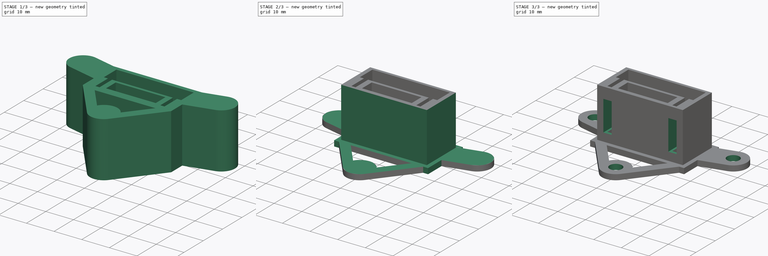
[diagram: build sequence overview — one tinted view per stage of 3, left to right]
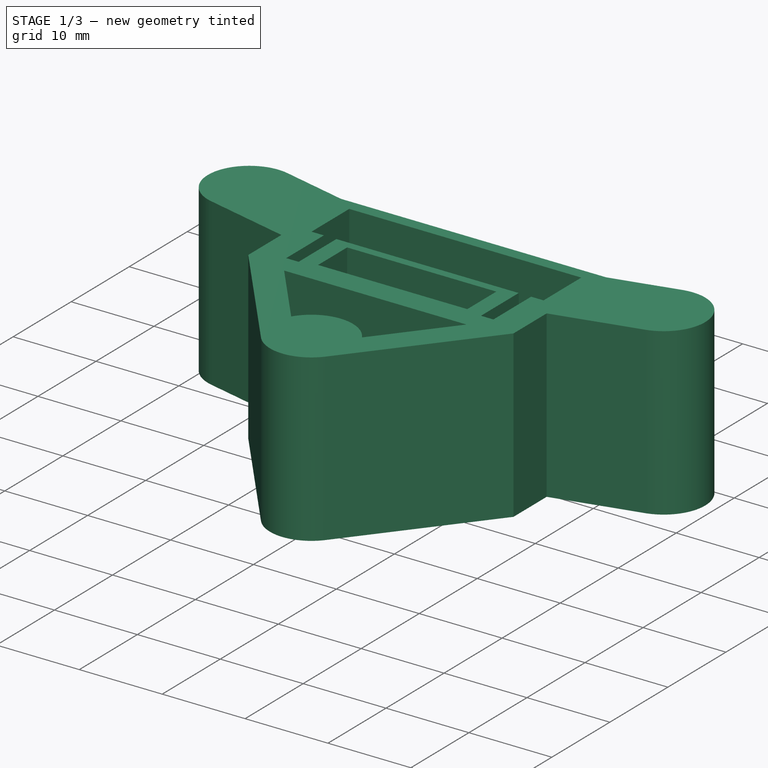
[diagram: stage 1 of 3 — iso view after this stage's code; geometry added in this stage tinted green]
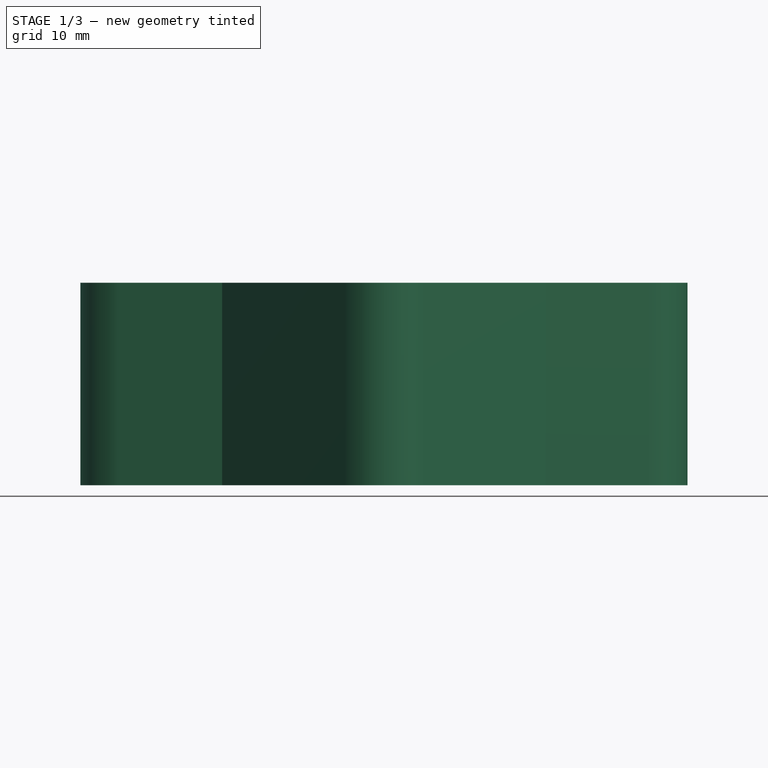
[diagram: stage 1 of 3 — front view after this stage's code; geometry added in this stage tinted green]
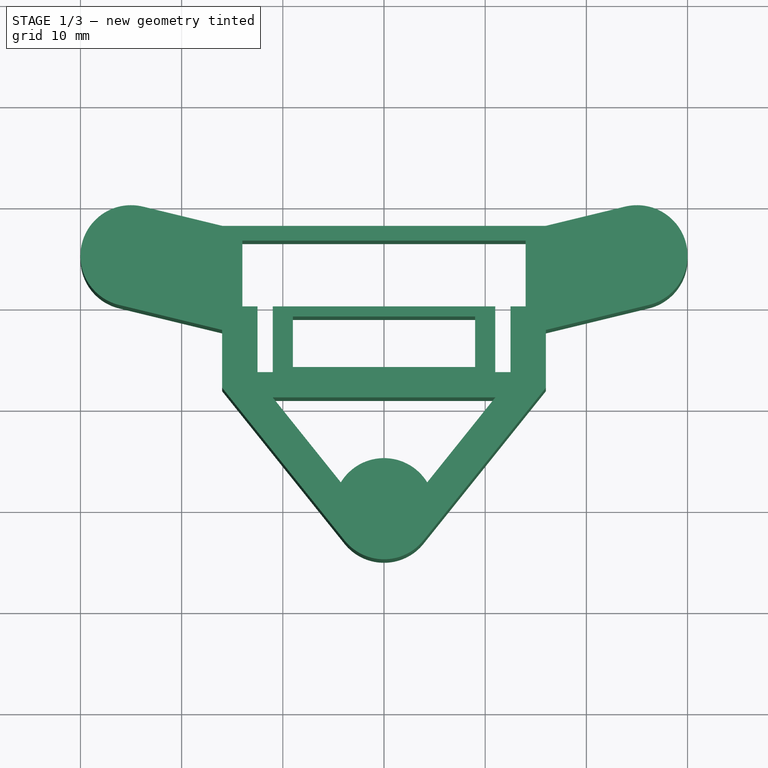
[diagram: stage 1 of 3 — top view after this stage's code; geometry added in this stage tinted green]
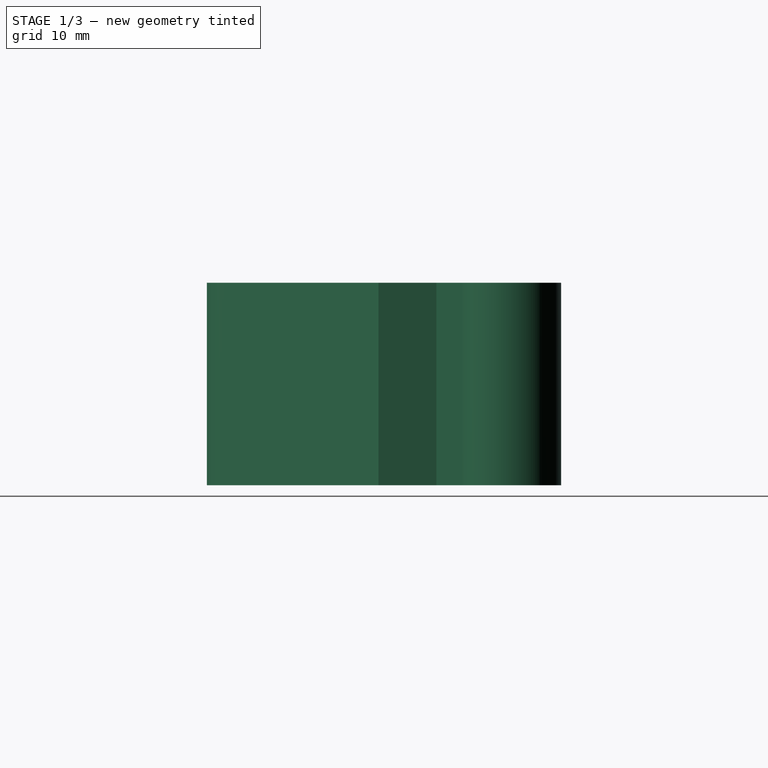
[diagram: stage 1 of 3 — right view after this stage's code; geometry added in this stage tinted green]
FCSTD DOCUMENT  (FreeCAD 1.0R38641 +678 (Git))
Label: box-part1
License: All rights reserved
LicenseURL: https://en.wikipedia.org/wiki/All_rights_reserved
objects: Sketcher::SketchObject×6, PartDesign::Pocket×4, PartDesign::Pad×2, PartDesign::Body×1
note: 31 computed .brp shape members not serialized (recipe doc carries the construction recipe); baked Part::Feature solids carry a one-line shape summary decoded from their .brp

FEATURE [Sketcher::SketchObject] Sketch276
  ArcFitTolerance = 0
  AttachmentSupport = -> [XY_Plane031]
  FullyConstrained = true
  MakeInternals = false
  MapMode = 5
  sketch-geometry (30):
    g0: LineSegment StartX=-14 StartY=6.5 StartZ=0 EndX=-14 EndY=0 EndZ=0
    g1: LineSegment StartX=-14 StartY=6.5 StartZ=0 EndX=14 EndY=6.5 EndZ=0
    g2: LineSegment StartX=14 StartY=6.5 StartZ=0 EndX=14 EndY=0 EndZ=0
    g3: LineSegment StartX=-12.5 StartY=-6.5 StartZ=0 EndX=-11 EndY=-6.5 EndZ=0
    g4: LineSegment StartX=-11 StartY=0 StartZ=0 EndX=11 EndY=1.7e-15 EndZ=0
    g5: LineSegment StartX=-12.5 StartY=0 StartZ=0 EndX=-12.5 EndY=-6.5 EndZ=0
    g6: LineSegment StartX=-11 StartY=0 StartZ=0 EndX=-11 EndY=-6.5 EndZ=0
    g7: LineSegment StartX=12.5 StartY=0 StartZ=0 EndX=12.5 EndY=-6.5 EndZ=0
    g8: LineSegment StartX=11 StartY=1.7e-15 StartZ=0 EndX=11 EndY=-6.5 EndZ=0
    g9: LineSegment StartX=-16 StartY=7.96043 StartZ=0 EndX=16 EndY=7.96043 EndZ=0
    g10: LineSegment StartX=16 StartY=-2.33 StartZ=0 EndX=16 EndY=-8.03957 EndZ=0
    g11: LineSegment StartX=-16 StartY=-8.03957 StartZ=0 EndX=-16 EndY=-2.33 EndZ=0
    g12: LineSegment StartX=-14 StartY=0 StartZ=0 EndX=-12.5 EndY=0 EndZ=0
    g13: LineSegment StartX=14 StartY=0 StartZ=0 EndX=12.5 EndY=0 EndZ=0
    g14: LineSegment StartX=11 StartY=-6.5 StartZ=0 EndX=12.5 EndY=-6.5 EndZ=0
    g15: ArcOfCircle CenterX=-25 CenterY=5 CenterZ=0 NormalX=0 NormalY=0 NormalZ=1 AngleXU=0 Radius=5 StartAngle=1.33265 EndAngle=4.47424
    g16: ArcOfCircle CenterX=25 CenterY=5 CenterZ=0 NormalX=0 NormalY=0 NormalZ=1 AngleXU=0 Radius=5 StartAngle=4.95054 EndAngle=8.09213
    g17: ArcOfCircle CenterX=0 CenterY=-20 CenterZ=0 NormalX=0 NormalY=0 NormalZ=1 AngleXU=0 Radius=5 StartAngle=0.547966 EndAngle=2.59363
    g18: LineSegment StartX=-16 StartY=7.96043 StartZ=0 EndX=-23.8205 EndY=9.85888 EndZ=0
    g19: LineSegment StartX=-16 StartY=-2.33 StartZ=0 EndX=-26.1795 EndY=0.141116 EndZ=0
    g20: LineSegment StartX=16 StartY=7.96043 StartZ=0 EndX=23.8205 EndY=9.85888 EndZ=0
    g21: LineSegment StartX=16 StartY=-2.33 StartZ=0 EndX=26.1795 EndY=0.141116 EndZ=0
    g22: LineSegment StartX=-16 StartY=-8.03957 StartZ=0 EndX=-3.90074 EndY=-23.128 EndZ=0
    g23: LineSegment StartX=16 StartY=-8.03957 StartZ=0 EndX=3.90074 EndY=-23.128 EndZ=0
    g24: LineSegment StartX=-11 StartY=-9 StartZ=0 EndX=11 EndY=-9 EndZ=0
    g25: LineSegment StartX=-11 StartY=-9 StartZ=0 EndX=-4.26793 EndY=-17.3952 EndZ=0
    g26: LineSegment StartX=11 StartY=-9 StartZ=0 EndX=4.26793 EndY=-17.3952 EndZ=0
    g27: ArcOfCircle CenterX=0 CenterY=-20 CenterZ=0 NormalX=0 NormalY=0 NormalZ=1 AngleXU=0 Radius=5 StartAngle=3.81749 EndAngle=5.60729
    g28: LineSegment [constr] StartX=-16 StartY=-8.03957 StartZ=0 EndX=16 EndY=-8.03957 EndZ=0
    g29: LineSegment [constr] StartX=-25 StartY=5 StartZ=0 EndX=25 EndY=5 EndZ=0
  constraints (87):
    c: Vertical(g0)
    c: Coincident(g1,g0)
    c: Horizontal(g1)
    c: DistanceX(g1,g1) = 28
    c: Coincident(g2,g1)
    c: Vertical(g2)
    c: Horizontal(g3)
    c: Distance(g0,g4) = 6.5
    c: Distance(g-1,g0) = 14
    c: Distance(g-1,g1) = 6.5
    c: Vertical(g5)
    c: Vertical(g6)
    c: PointOnObject(g7,g3)
    c: Vertical(g7)
    c: Vertical(g8)
    c: Coincident(g4,g8)
    c: Horizontal(g9)
    c: Vertical(g10)
    c: Vertical(g11)
    c: DistanceY(g10,g9) = 16
    c: DistanceX(g11,g10) = 32
    c: Distance(g-1,g10) = 16
    c: PointOnObject(g12,g-1)
    c: Horizontal(g12)
    c: Coincident(g5,g12)
    c: Coincident(g6,g4)
    c: Horizontal(g13)
    c: Coincident(g7,g13)
    c: Coincident(g0,g12)
    c: Coincident(g3,g6)
    c: Coincident(g14,g8)
    c: Coincident(g3,g5)
    c: Coincident(g2,g13)
    c: PointOnObject(g14,g7)
    c: DistanceY(g2,g2) = 6.5
    c: DistanceX(g13,g13) = 1.5
    c: DistanceX(g4,g4) = 22
    c: DistanceX(g12,g12) = 1.5
    c: PointOnObject(g4,g-1)
    c: DistanceY(g6,g6) = 6.5
    c: DistanceY(g8,g8) = 6.5
    c: Distance(g-1,g8) = 11
    c: Horizontal(g14)
    c: PointOnObject(g17,g-2)
    c: Diameter(g17) = 10
    c: Equal(g15,g16)
    c: Equal(g16,g17)
    c: Distance(g15,g16) = 50
    c: DistanceY(g-1,g15) = 5
    c: DistanceY(g-1,g16) = 5
    c: DistanceX(g-2,g15) = -25
    c: Coincident(g18,g9)
    c: Parallel(g18,g19)
    c: Tangent(g15,g19) = 1.5708
    c: Tangent(g15,g18) = -1.5708
    c: Coincident(g20,g9)
    c: Parallel(g20,g21)
    c: Tangent(g16,g20) = 1.5708
    c: Tangent(g16,g21) = -1.5708
    c: Coincident(g10,g21)
    c: Coincident(g11,g19)
    c: DistanceX(g9,g9) = 32
    c: DistanceX(g-2,g9) = 16
    c: Coincident(g23,g10)
    c: Coincident(g22,g11)
    c: DistanceY(g-1,g11) = -2.33
    c: Horizontal(g24)
    c: Coincident(g25,g24)
    c: Distance(g-1,g24) = 9
    c: Parallel(g25,g22)
    c: DistanceX(g-2,g24) = -11
    c: DistanceX(g24,g24) = 22
    c: Coincident(g26,g24)
    c: Parallel(g26,g23)
    c: Coincident(g27,g23) = 1.5708
    c: Coincident(g17,g26)
    c: Equal(g17,g27)
    c: Coincident(g17,g25)
    c: Tangent(g27,g22) = -1.5708
    c: Coincident(g17,g27)
    c: Tangent(g23,g27) = 1.5708
    c: Coincident(g28,g11)
    c: Horizontal(g28)
    c: Coincident(g28,g10)
    c: Coincident(g29,g15)
    c: Coincident(g29,g16)
    c: Distance(g17,g29) = 25
FEATURE [PartDesign::Pad] Pad132
  Direction = (0,0,1)
  Length = 20
  Length2 = 10
  Profile = -> Sketch276
  ReferenceAxis = -> Sketch276 [N_Axis]
  Suppressed = false
  Type = 0
FEATURE [Sketcher::SketchObject] Sketch277
  ArcFitTolerance = 0
  AttachmentSupport = -> [Pad132]
  FullyConstrained = true
  MakeInternals = false
  MapMode = 5
  Placement = pos=(0,0,0) rot=(1,0,0;3.14159rad)
  sketch-geometry (4):
    g0: LineSegment StartX=-9 StartY=6 StartZ=0 EndX=9 EndY=6 EndZ=0
    g1: LineSegment StartX=9 StartY=6 StartZ=0 EndX=9 EndY=1 EndZ=0
    g2: LineSegment StartX=9 StartY=1 StartZ=0 EndX=-9 EndY=1 EndZ=0
    g3: LineSegment StartX=-9 StartY=1 StartZ=0 EndX=-9 EndY=6 EndZ=0
  constraints (12):
    c: Coincident(g0,g1)
    c: Coincident(g1,g2)
    c: Coincident(g2,g3)
    c: Coincident(g3,g0)
    c: Horizontal(g0)
    c: Horizontal(g2)
    c: Vertical(g1)
    c: Vertical(g3)
    c: Distance(g-1,g2) = 1
    c: DistanceY(g1,g1) = 5
    c: DistanceX(g0,g0) = 18
    c: Distance(g-1,g1) = 9
FEATURE [PartDesign::Pocket] Pocket115
  BaseFeature = -> Pad132
  Direction = (0,0,1)
  Length = 20
  Length2 = 5
  Profile = -> Sketch277
  ReferenceAxis = -> Sketch277 [N_Axis]
  Suppressed = false
  Type = 0
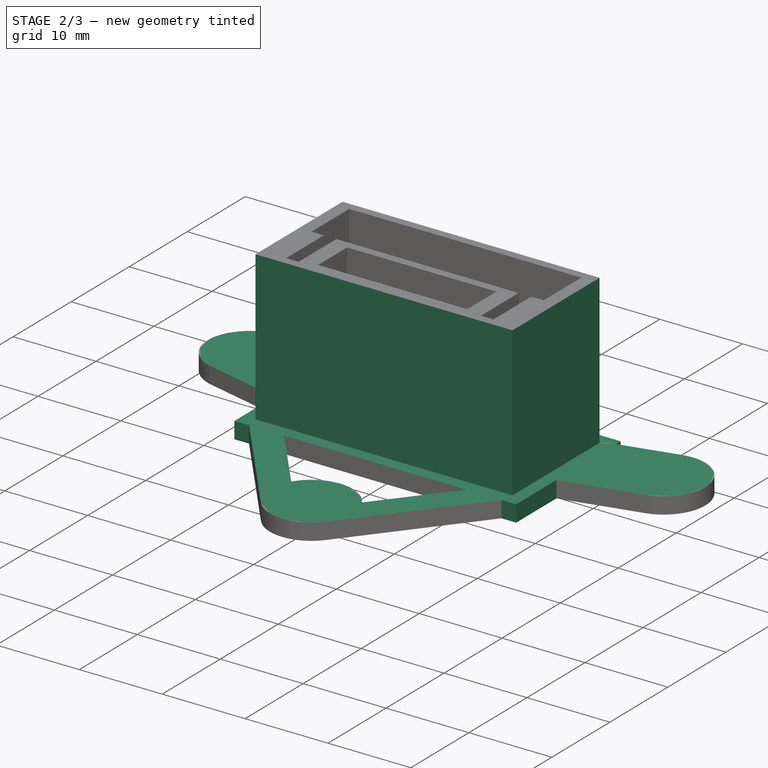
[diagram: stage 2 of 3 — iso view after this stage's code; geometry added in this stage tinted green]
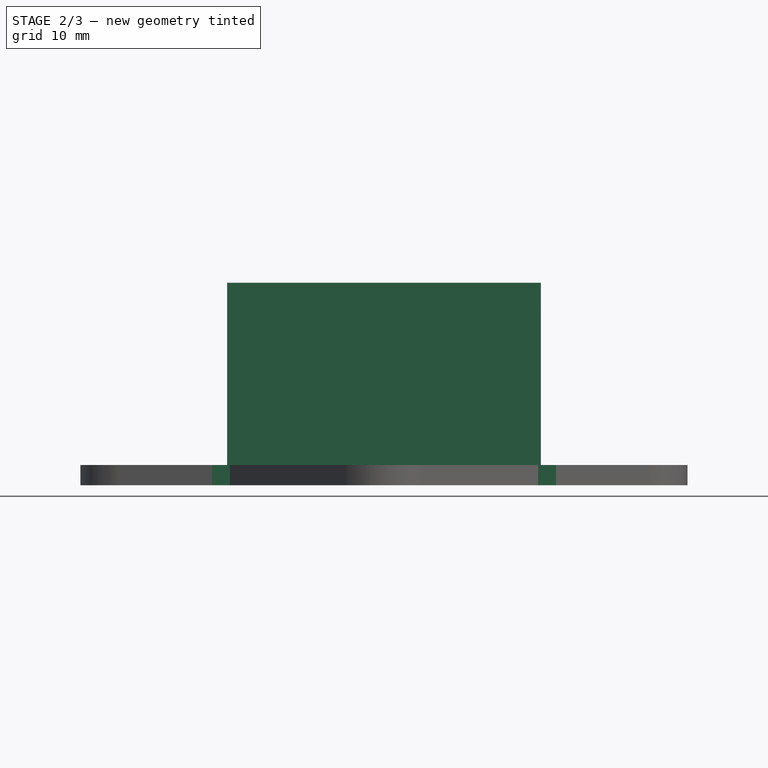
[diagram: stage 2 of 3 — front view after this stage's code; geometry added in this stage tinted green]
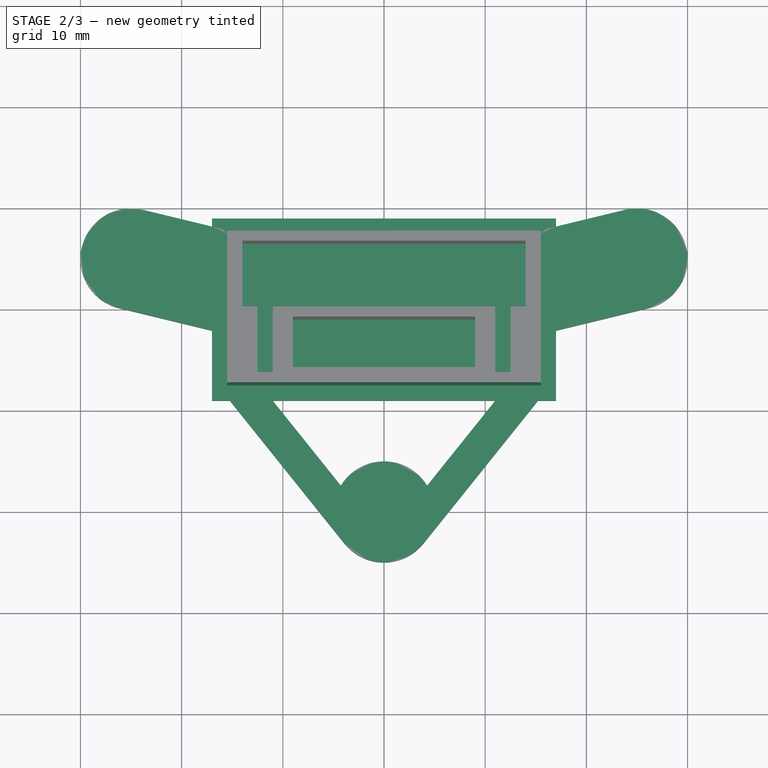
[diagram: stage 2 of 3 — top view after this stage's code; geometry added in this stage tinted green]
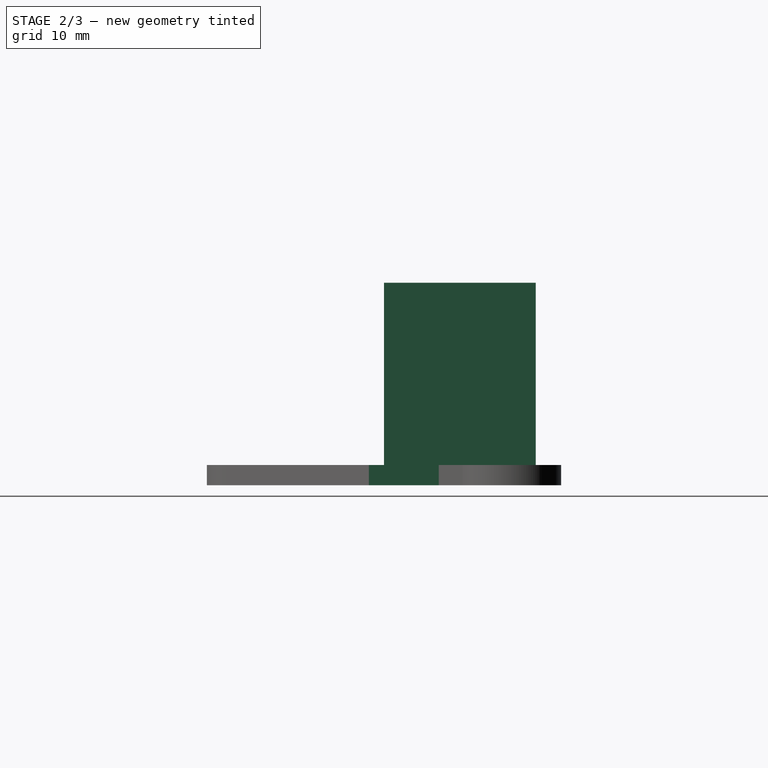
[diagram: stage 2 of 3 — right view after this stage's code; geometry added in this stage tinted green]
FEATURE [Sketcher::SketchObject] Sketch278
  ArcFitTolerance = 0
  AttachmentSupport = -> [Pocket115]
  FullyConstrained = true
  MakeInternals = false
  MapMode = 5
  Placement = pos=(0,0,0) rot=(1,0,0;3.14159rad)
  sketch-geometry (4):
    g0: LineSegment StartX=-17 StartY=9 StartZ=0 EndX=17 EndY=9 EndZ=0
    g1: LineSegment StartX=17 StartY=9 StartZ=0 EndX=17 EndY=-9 EndZ=0
    g2: LineSegment StartX=17 StartY=-9 StartZ=0 EndX=-17 EndY=-9 EndZ=0
    g3: LineSegment StartX=-17 StartY=-9 StartZ=0 EndX=-17 EndY=9 EndZ=0
  constraints (12):
    c: Coincident(g0,g1)
    c: Coincident(g1,g2)
    c: Coincident(g2,g3)
    c: Coincident(g3,g0)
    c: Horizontal(g0)
    c: Horizontal(g2)
    c: Vertical(g1)
    c: Vertical(g3)
    c: DistanceX(g2,g2) = 34
    c: DistanceY(g3,g3) = 18
    c: Distance(g-1,g0) = 9
    c: Distance(g-1,g3) = 17
FEATURE [PartDesign::Pad] Pad133
  BaseFeature = -> Pocket115
  Direction = (0,0,-1)
  Length = 2
  Length2 = 10
  Profile = -> Sketch278
  ReferenceAxis = -> Sketch278 [N_Axis]
  Reversed = true
  Suppressed = false
  Type = 0
FEATURE [Sketcher::SketchObject] Sketch279
  ArcFitTolerance = 0
  AttachmentSupport = -> [Pad133]
  FullyConstrained = true
  MakeInternals = false
  MapMode = 5
  Placement = pos=(0,0,20) rot=(0,0,1;0rad)
  sketch-geometry (8):
    g0: LineSegment StartX=15.5 StartY=-7.5 StartZ=0 EndX=-15.5 EndY=-7.5 EndZ=0
    g1: LineSegment StartX=-30.5 StartY=-29.5 StartZ=0 EndX=30.5 EndY=-29.5 EndZ=0
    g2: LineSegment StartX=-30.5 StartY=-29.5 StartZ=0 EndX=-30.5 EndY=20 EndZ=0
    g3: LineSegment StartX=-15.5 StartY=7.5 StartZ=0 EndX=-15.5 EndY=-7.5 EndZ=0
    g4: LineSegment StartX=30.5 StartY=-29.5 StartZ=0 EndX=30.5 EndY=20 EndZ=0
    g5: LineSegment StartX=15.5 StartY=7.5 StartZ=0 EndX=15.5 EndY=-7.5 EndZ=0
    g6: LineSegment StartX=-15.5 StartY=7.5 StartZ=0 EndX=15.5 EndY=7.5 EndZ=0
    g7: LineSegment StartX=30.5 StartY=20 StartZ=0 EndX=-30.5 EndY=20 EndZ=0
  constraints (24):
    c: Horizontal(g0)
    c: Horizontal(g1)
    c: Vertical(g2)
    c: Vertical(g3)
    c: Vertical(g4)
    c: Vertical(g5)
    c: DistanceX(g2,g3) = 15
    c: DistanceX(g5,g4) = 15
    c: Distance(g-1,g3) = 15.5
    c: Distance(g-1,g5) = 15.5
    c: DistanceY(g1,g0) = 22
    c: Distance(g-1,g1) = 29.5
    c: Horizontal(g6)
    c: Horizontal(g7)
    c: Distance(g-1,g6) = 7.5
    c: Coincident(g0,g3)
    c: Coincident(g0,g5)
    c: Coincident(g3,g6)
    c: Coincident(g6,g5)
    c: Coincident(g1,g4)
    c: Coincident(g1,g2)
    c: Coincident(g2,g7)
    c: Coincident(g7,g4)
    c: DistanceY(g4,g4) = 49.5
FEATURE [PartDesign::Pocket] Pocket116
  BaseFeature = -> Pad133
  Direction = (0,0,-1)
  Length = 36
  Length2 = 5
  Midplane = true
  Profile = -> Sketch279
  ReferenceAxis = -> Sketch279 [N_Axis]
  Suppressed = false
  Type = 0
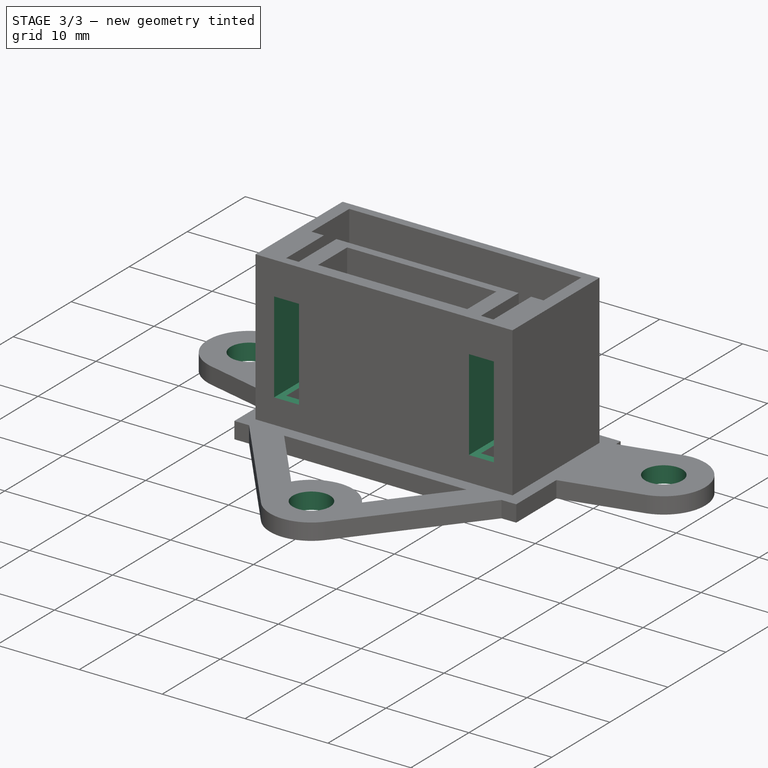
[diagram: stage 3 of 3 — iso view after this stage's code; geometry added in this stage tinted green]
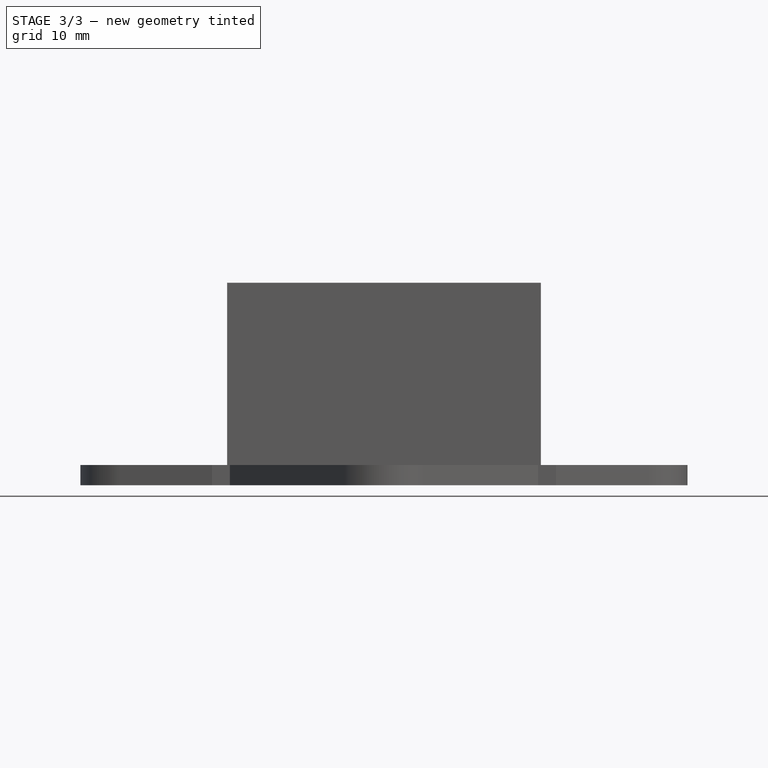
[diagram: stage 3 of 3 — front view after this stage's code; geometry added in this stage tinted green]
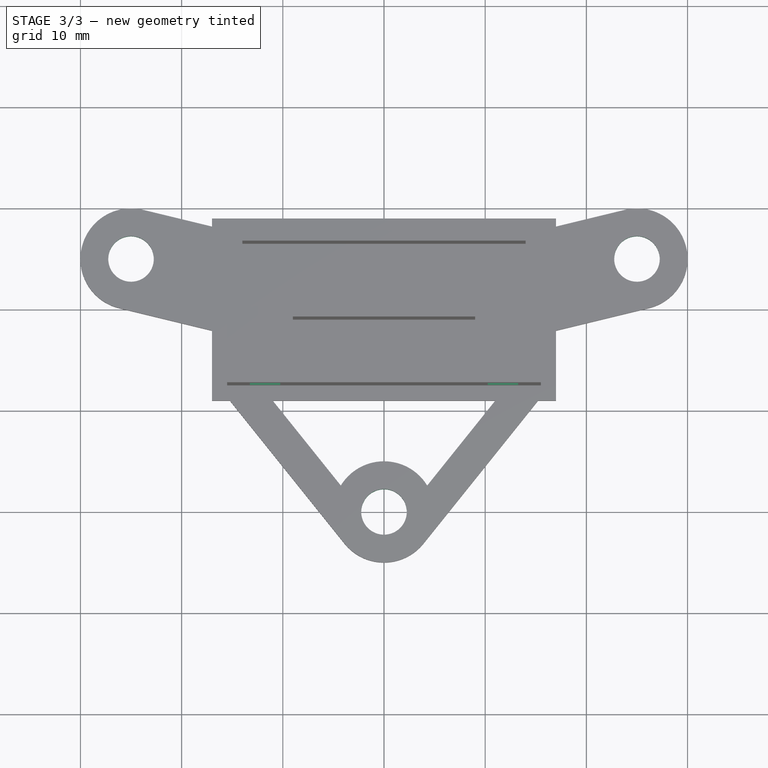
[diagram: stage 3 of 3 — top view after this stage's code; geometry added in this stage tinted green]
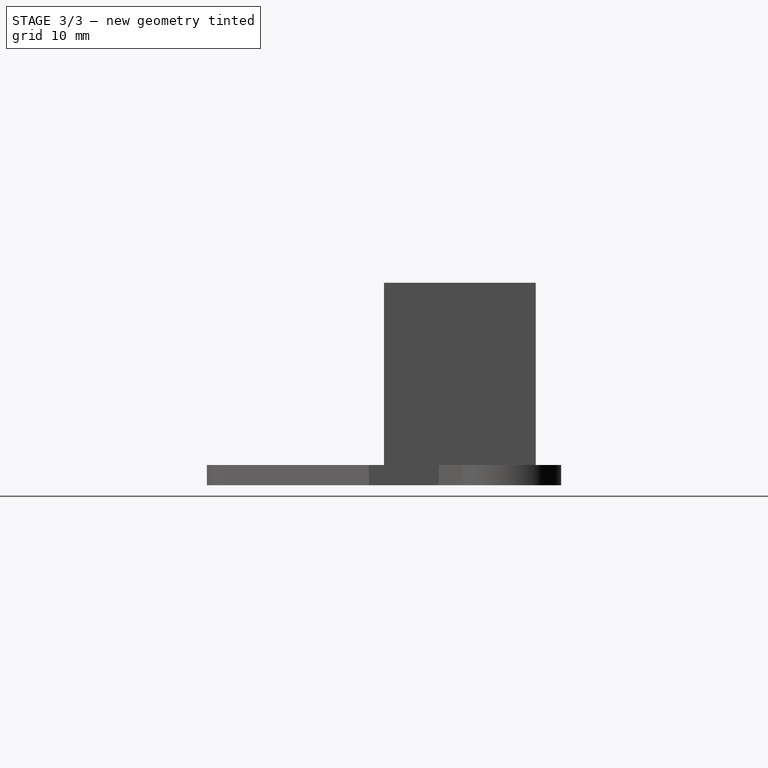
[diagram: stage 3 of 3 — right view after this stage's code; geometry added in this stage tinted green]
FEATURE [Sketcher::SketchObject] Sketch280
  ArcFitTolerance = 0
  AttachmentSupport = -> [XY_Plane031]
  FullyConstrained = true
  MakeInternals = false
  MapMode = 5
  sketch-geometry (3):
    g0: Circle CenterX=0 CenterY=-20 CenterZ=0 NormalX=0 NormalY=0 NormalZ=1 AngleXU=0 Radius=2.25
    g1: Circle CenterX=25 CenterY=5 CenterZ=0 NormalX=0 NormalY=0 NormalZ=1 AngleXU=0 Radius=2.25
    g2: Circle CenterX=-25 CenterY=5 CenterZ=0 NormalX=0 NormalY=0 NormalZ=1 AngleXU=0 Radius=2.25
  constraints (9):
    c: Distance(g2,g-2) = 25
    c: Distance(g1,g-2) = 25
    c: Distance(g2,g-1) = 5
    c: Distance(g1,g-1) = 5
    c: Distance(g0,g-1) = 20
    c: PointOnObject(g0,g-2)
    c: Diameter(g2) = 4.5
    c: Equal(g2,g1)
    c: Equal(g2,g0)
FEATURE [PartDesign::Pocket] Pocket117
  BaseFeature = -> Pocket116
  Direction = (0,0,-1)
  Length = 5
  Length2 = 5
  Profile = -> Sketch280
  ReferenceAxis = -> Sketch280 [N_Axis]
  Reversed = true
  Suppressed = false
  Type = 0
FEATURE [Sketcher::SketchObject] Sketch281
  ArcFitTolerance = 0
  AttachmentSupport = -> [Pocket117]
  FullyConstrained = true
  MakeInternals = false
  MapMode = 5
  Placement = pos=(0,-7.5,0) rot=(1,0,0;1.5708rad)
  sketch-geometry (8):
    g0: LineSegment StartX=-13.25 StartY=5 StartZ=0 EndX=-10.25 EndY=5 EndZ=0
    g1: LineSegment StartX=-13.25 StartY=5 StartZ=0 EndX=-13.25 EndY=16 EndZ=0
    g2: LineSegment StartX=-10.25 StartY=5 StartZ=0 EndX=-10.25 EndY=16 EndZ=0
    g3: LineSegment StartX=-13.25 StartY=16 StartZ=0 EndX=-10.25 EndY=16 EndZ=0
    g4: LineSegment StartX=10.25 StartY=5 StartZ=0 EndX=13.25 EndY=5 EndZ=0
    g5: LineSegment StartX=10.25 StartY=5 StartZ=0 EndX=10.25 EndY=16 EndZ=0
    g6: LineSegment StartX=13.25 StartY=5 StartZ=0 EndX=13.25 EndY=16 EndZ=0
    g7: LineSegment StartX=10.25 StartY=16 StartZ=0 EndX=13.25 EndY=16 EndZ=0
  constraints (24):
    c: Horizontal(g0)
    c: DistanceX(g0,g0) = 3
    c: DistanceX(g-2,g0) = -10.25
    c: Distance(g-1,g0) = 5
    c: Coincident(g1,g0)
    c: Vertical(g1)
    c: Coincident(g2,g0)
    c: Vertical(g2)
    c: Coincident(g3,g1)
    c: Coincident(g3,g2)
    c: Horizontal(g3)
    c: DistanceY(g1,g1) = 11
    c: Horizontal(g4)
    c: DistanceX(g4,g4) = 3
    c: Coincident(g5,g4)
    c: Vertical(g5)
    c: Coincident(g6,g4)
    c: Vertical(g6)
    c: Coincident(g7,g5)
    c: Coincident(g7,g6)
    c: Horizontal(g7)
    c: Distance(g-1,g4) = 5
    c: DistanceY(g6,g6) = 11
    c: DistanceX(g-2,g4) = 10.25
FEATURE [PartDesign::Pocket] Pocket118
  BaseFeature = -> Pocket117
  Direction = (0,1,-2e-16)
  Length = 8
  Length2 = 5
  Profile = -> Sketch281
  ReferenceAxis = -> Sketch281 [N_Axis]
  Suppressed = false
  Type = 0
FEATURE [PartDesign::Body] Body030  label="box-part1"
  AllowCompound = false
  Group = -> [Sketch276,Pad132,Sketch277,Pocket115,Sketch278,Pad133,Sketch279,Pocket116,Sketch280,Pocket117,Sketch281,Pocket118]
  Origin = -> Origin030
  Placement = pos=(0,0,-33) rot=(0,0,1;0rad)
  Tip = -> Pocket118
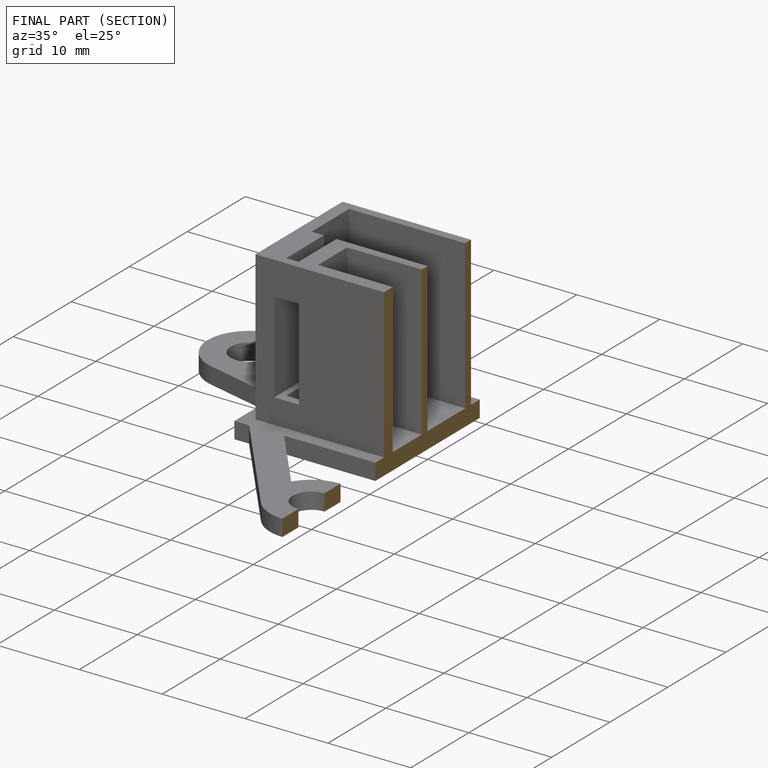
[diagram: finished part — half-section view (interior)]
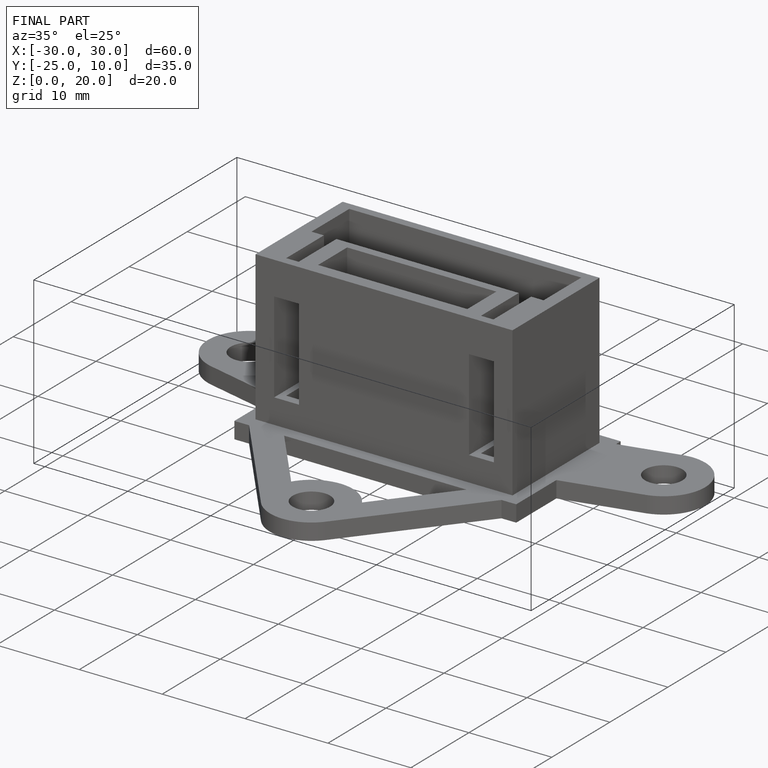
[diagram: finished part — iso view with bounding-box wireframe]
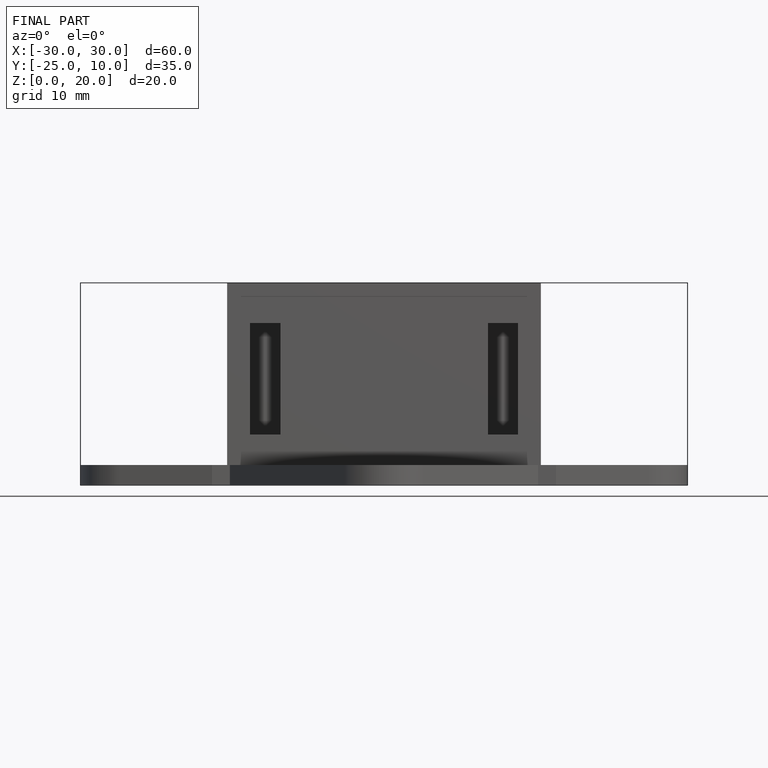
[diagram: finished part — front view with bounding-box wireframe]
